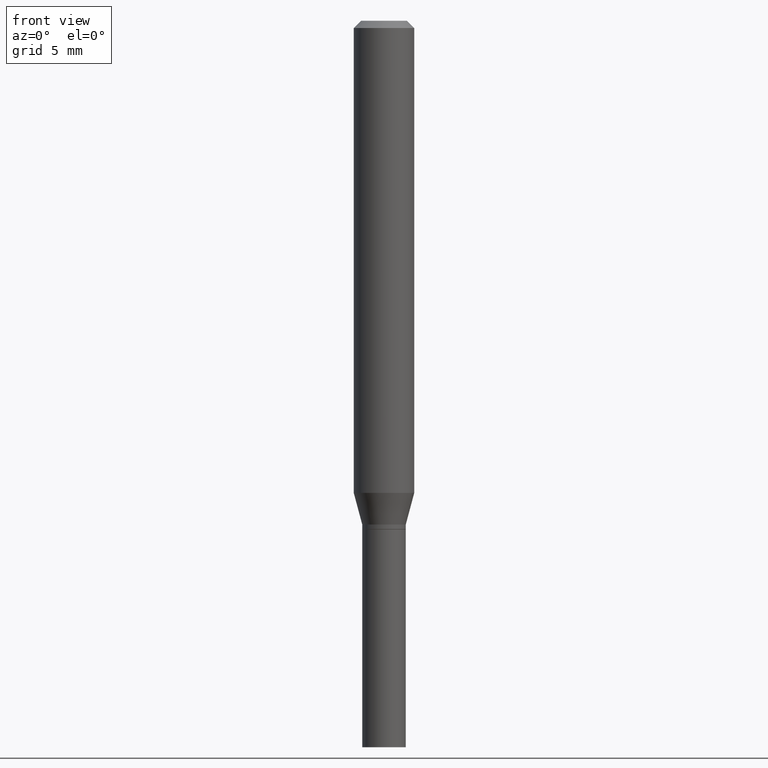
[diagram: clean part render]
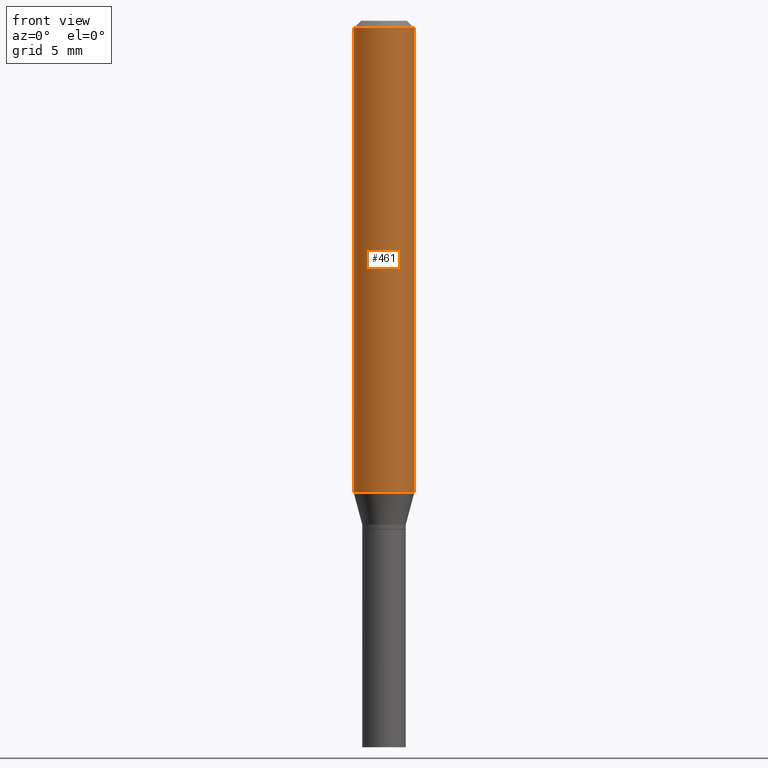
[diagram: same view with one face highlighted and labeled with its STEP entity id]
A machine part, front view. The second image highlights one B-rep face of the part: STEP entity #461.
In plain terms, the highlighted cylindrical surface (edge-blend (fillet) strip) has radius 1.5875 mm, axis along (-0, 0, 1).
Its self-contained STEP definition (entity closure, byte-faithful):
#5 = CARTESIAN_POINT ( 'NONE',  ( 2.383571816354907179E-29, -3.403108841767650728E-15, -0.9746891108675448390 ) ) ;
#6 = DIRECTION ( 'NONE',  ( 1.000000000000000000, -6.982962677686270655E-15, 0.000000000000000000 ) ) ;
#16 = VERTEX_POINT ( 'NONE', #142 ) ;
#19 = AXIS2_PLACEMENT_3D ( 'NONE', #389, #287, #107 ) ;
#20 = CARTESIAN_POINT ( 'NONE',  ( 0.06250000000000000000, -3.839544009123042397E-15, -0.9746891108675448390 ) ) ;
#26 = VECTOR ( 'NONE', #50, 39.37007874015748143 ) ;
#43 = DIRECTION ( 'NONE',  ( -2.445468806185136597E-29, 3.491481338843145583E-15, 1.000000000000000000 ) ) ;
#50 = DIRECTION ( 'NONE',  ( -2.445468806185136877E-29, 3.491481338843145188E-15, 1.000000000000000000 ) ) ;
#65 = EDGE_LOOP ( 'NONE', ( #266, #417, #223, #157 ) ) ;
#72 = VERTEX_POINT ( 'NONE', #20 ) ;
#90 = DIRECTION ( 'NONE',  ( 1.000000000000000000, -6.982962677686266711E-15, 4.876176775795935793E-29 ) ) ;
#93 = EDGE_CURVE ( 'NONE', #16, #302, #236, .T. ) ;
#98 = DIRECTION ( 'NONE',  ( -2.445468806185136597E-29, 3.491481338843145583E-15, 1.000000000000000000 ) ) ;
#100 = CARTESIAN_POINT ( 'NONE',  ( -0.06250000000000000000, 4.440892098500626162E-16, -3.074334431409316114E-30 ) ) ;
#102 = VERTEX_POINT ( 'NONE', #169 ) ;
#107 = DIRECTION ( 'NONE',  ( 1.000000000000000000, -6.982962677686266711E-15, 0.000000000000000000 ) ) ;
#123 = CARTESIAN_POINT ( 'NONE',  ( 0.06250000000000000000, -4.364351673553916694E-16, 3.047610484872459871E-30 ) ) ;
#142 = CARTESIAN_POINT ( 'NONE',  ( -0.06250000000000000000, -2.959019631917587717E-15, -0.9746891108675448390 ) ) ;
#156 = CYLINDRICAL_SURFACE ( 'NONE', #229, 0.06250000000000000000 ) ;
#157 = ORIENTED_EDGE ( 'NONE', *, *, #264, .F. ) ;
#169 = CARTESIAN_POINT ( 'NONE',  ( 0.06250000000000000000, -4.888073874380388472E-16, -0.01499999999999999944 ) ) ;
#223 = ORIENTED_EDGE ( 'NONE', *, *, #439, .T. ) ;
#229 = AXIS2_PLACEMENT_3D ( 'NONE', #407, #98, #90 ) ;
#236 = LINE ( 'NONE', #100, #238 ) ;
#237 = CIRCLE ( 'NONE', #320, 0.06250000000000000000 ) ;
#238 = VECTOR ( 'NONE', #245, 39.37007874015748143 ) ;
#245 = DIRECTION ( 'NONE',  ( -2.445468806185136877E-29, 3.491481338843145188E-15, 1.000000000000000000 ) ) ;
#262 = LINE ( 'NONE', #123, #26 ) ;
#264 = EDGE_CURVE ( 'NONE', #302, #102, #321, .T. ) ;
#266 = ORIENTED_EDGE ( 'NONE', *, *, #93, .F. ) ;
#287 = DIRECTION ( 'NONE',  ( -2.445468806185136597E-29, 3.491481338843145583E-15, 1.000000000000000000 ) ) ;
#302 = VERTEX_POINT ( 'NONE', #369 ) ;
#320 = AXIS2_PLACEMENT_3D ( 'NONE', #5, #43, #6 ) ;
#321 = CIRCLE ( 'NONE', #19, 0.06250000000000000000 ) ;
#331 = FACE_OUTER_BOUND ( 'NONE', #65, .T. ) ;
#369 = CARTESIAN_POINT ( 'NONE',  ( -0.06250000000000000000, -1.283651321075086287E-15, -0.01499999999999999944 ) ) ;
#389 = CARTESIAN_POINT ( 'NONE',  ( 3.668203209277705088E-31, -5.237222008264718399E-17, -0.01499999999999999944 ) ) ;
#406 = EDGE_CURVE ( 'NONE', #16, #72, #237, .T. ) ;
#407 = CARTESIAN_POINT ( 'NONE',  ( 0.000000000000000000, 0.000000000000000000, 0.000000000000000000 ) ) ;
#417 = ORIENTED_EDGE ( 'NONE', *, *, #406, .T. ) ;
#439 = EDGE_CURVE ( 'NONE', #72, #102, #262, .T. ) ;
#461 = ADVANCED_FACE ( 'NONE', ( #331 ), #156, .T. ) ;